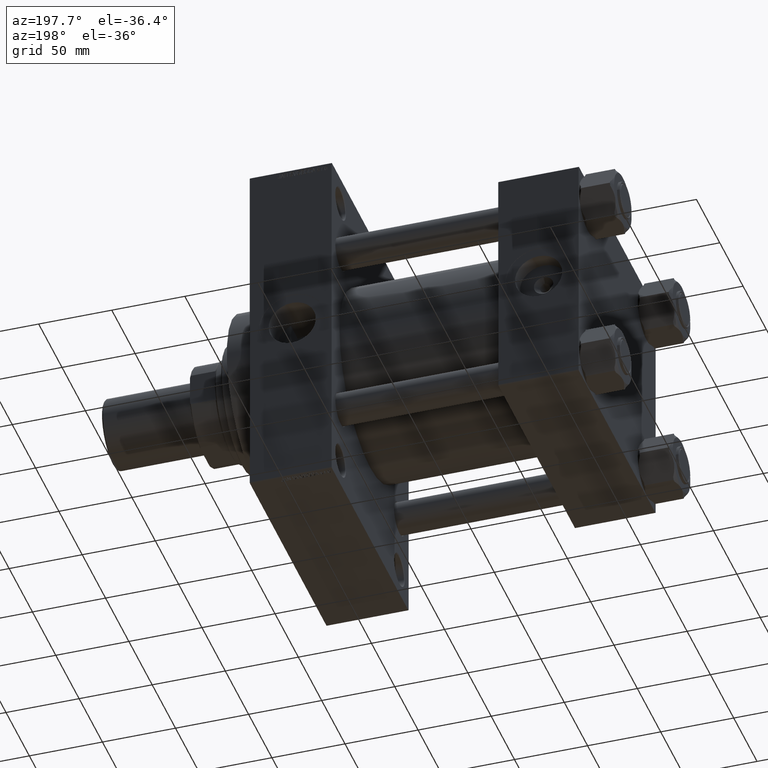
[diagram: clean part render]
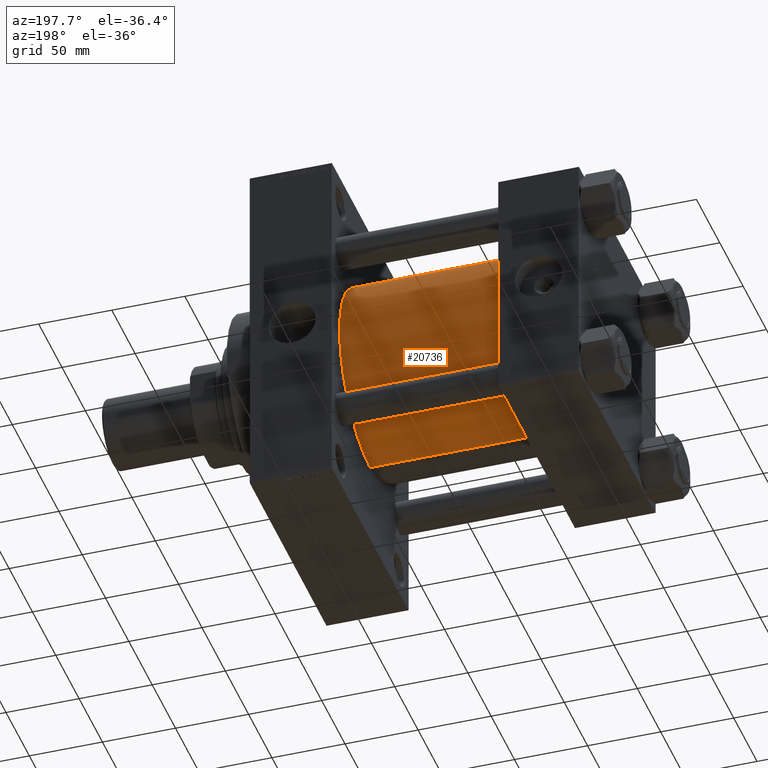
[diagram: same view with one face highlighted and labeled with its STEP entity id]
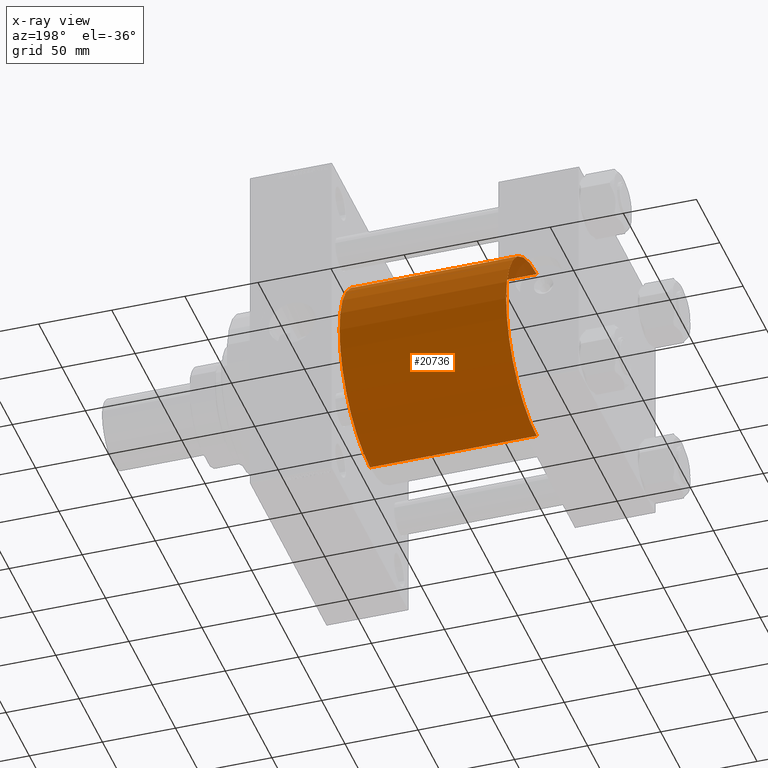
[diagram: x-ray of the same camera — body ghosted, the highlighted face saturated]
A machine part, auxiliary view. The second image highlights one B-rep face of the part: STEP entity #20736.
The next image is the same camera in x-ray: the body ghosted, the highlighted face saturated — about 1% of this face is hidden behind the body in this view.
In plain terms, the highlighted cylindrical surface (partial cylindrical patch) has radius 65.5 mm, axis along (-1, -0, -0).
Its self-contained STEP definition (entity closure, byte-faithful):
#1553 = CIRCLE ( 'NONE', #7773, 65.50000000000001421 ) ;
#2224 = VERTEX_POINT ( 'NONE', #23569 ) ;
#4876 = CIRCLE ( 'NONE', #32107, 65.50000000000001421 ) ;
#7773 = AXIS2_PLACEMENT_3D ( 'NONE', #29680, #22129, #33558 ) ;
#8345 = LINE ( 'NONE', #27105, #21263 ) ;
#9902 = CARTESIAN_POINT ( 'NONE',  ( 169.0000000000000000, 5.419351320449953395E-15, -65.50000000000001421 ) ) ;
#12027 = ORIENTED_EDGE ( 'NONE', *, *, #36020, .T. ) ;
#12719 = DIRECTION ( 'NONE',  ( -1.000000000000000000, -0.000000000000000000, -0.000000000000000000 ) ) ;
#14318 = EDGE_CURVE ( 'NONE', #25463, #24898, #1553, .T. ) ;
#14319 = DIRECTION ( 'NONE',  ( 1.000000000000000000, -0.000000000000000000, -0.000000000000000000 ) ) ;
#15901 = VECTOR ( 'NONE', #26797, 1000.000000000000000 ) ;
#19020 = LINE ( 'NONE', #26325, #15901 ) ;
#19183 = CARTESIAN_POINT ( 'NONE',  ( 169.0000000000000000, -2.602085213965210642E-15, 0.000000000000000000 ) ) ;
#19419 = DIRECTION ( 'NONE',  ( -1.000000000000000000, -0.000000000000000000, -0.000000000000000000 ) ) ;
#20736 = ADVANCED_FACE ( 'NONE', ( #31098 ), #45970, .T. ) ;
#21263 = VECTOR ( 'NONE', #12719, 1000.000000000000000 ) ;
#22129 = DIRECTION ( 'NONE',  ( 1.000000000000000000, 0.000000000000000000, 0.000000000000000000 ) ) ;
#22279 = EDGE_CURVE ( 'NONE', #24898, #2224, #8345, .T. ) ;
#23569 = CARTESIAN_POINT ( 'NONE',  ( 54.99999999999999289, -2.602085213965210642E-15, 65.50000000000001421 ) ) ;
#24898 = VERTEX_POINT ( 'NONE', #34880 ) ;
#25034 = EDGE_CURVE ( 'NONE', #25463, #41466, #19020, .T. ) ;
#25463 = VERTEX_POINT ( 'NONE', #9902 ) ;
#26325 = CARTESIAN_POINT ( 'NONE',  ( 169.0000000000000000, 5.419351320449953395E-15, -65.50000000000001421 ) ) ;
#26797 = DIRECTION ( 'NONE',  ( -1.000000000000000000, -0.000000000000000000, -0.000000000000000000 ) ) ;
#27105 = CARTESIAN_POINT ( 'NONE',  ( 169.0000000000000000, -2.602085213965210642E-15, 65.50000000000001421 ) ) ;
#28191 = AXIS2_PLACEMENT_3D ( 'NONE', #19183, #19419, #34260 ) ;
#28516 = ORIENTED_EDGE ( 'NONE', *, *, #25034, .T. ) ;
#29680 = CARTESIAN_POINT ( 'NONE',  ( 169.0000000000000000, -2.602085213965210642E-15, 0.000000000000000000 ) ) ;
#31098 = FACE_OUTER_BOUND ( 'NONE', #34639, .T. ) ;
#32107 = AXIS2_PLACEMENT_3D ( 'NONE', #41755, #14319, #36963 ) ;
#33558 = DIRECTION ( 'NONE',  ( 0.000000000000000000, 0.000000000000000000, -1.000000000000000000 ) ) ;
#34260 = DIRECTION ( 'NONE',  ( 0.000000000000000000, 0.000000000000000000, 1.000000000000000000 ) ) ;
#34639 = EDGE_LOOP ( 'NONE', ( #39181, #28516, #12027, #46965 ) ) ;
#34880 = CARTESIAN_POINT ( 'NONE',  ( 169.0000000000000000, -2.602085213965210642E-15, 65.50000000000001421 ) ) ;
#36020 = EDGE_CURVE ( 'NONE', #41466, #2224, #4876, .T. ) ;
#36963 = DIRECTION ( 'NONE',  ( 0.000000000000000000, 0.000000000000000000, 1.000000000000000000 ) ) ;
#39181 = ORIENTED_EDGE ( 'NONE', *, *, #14318, .F. ) ;
#41466 = VERTEX_POINT ( 'NONE', #47143 ) ;
#41755 = CARTESIAN_POINT ( 'NONE',  ( 54.99999999999999289, -2.602085213965210642E-15, 0.000000000000000000 ) ) ;
#45970 = CYLINDRICAL_SURFACE ( 'NONE', #28191, 65.50000000000001421 ) ;
#46965 = ORIENTED_EDGE ( 'NONE', *, *, #22279, .F. ) ;
#47143 = CARTESIAN_POINT ( 'NONE',  ( 54.99999999999999289, 5.419351320449953395E-15, -65.50000000000001421 ) ) ;